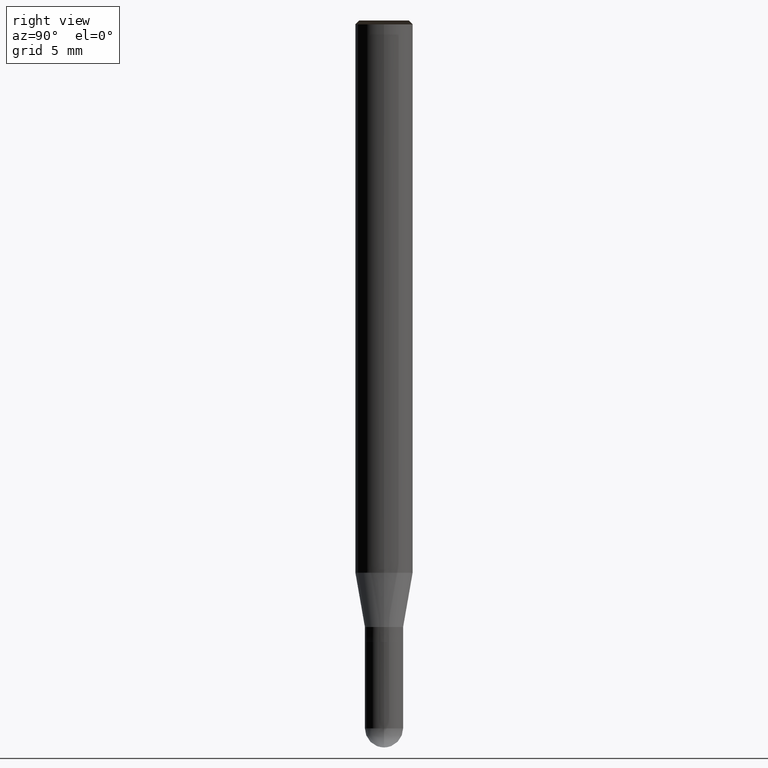
[diagram: clean part render]
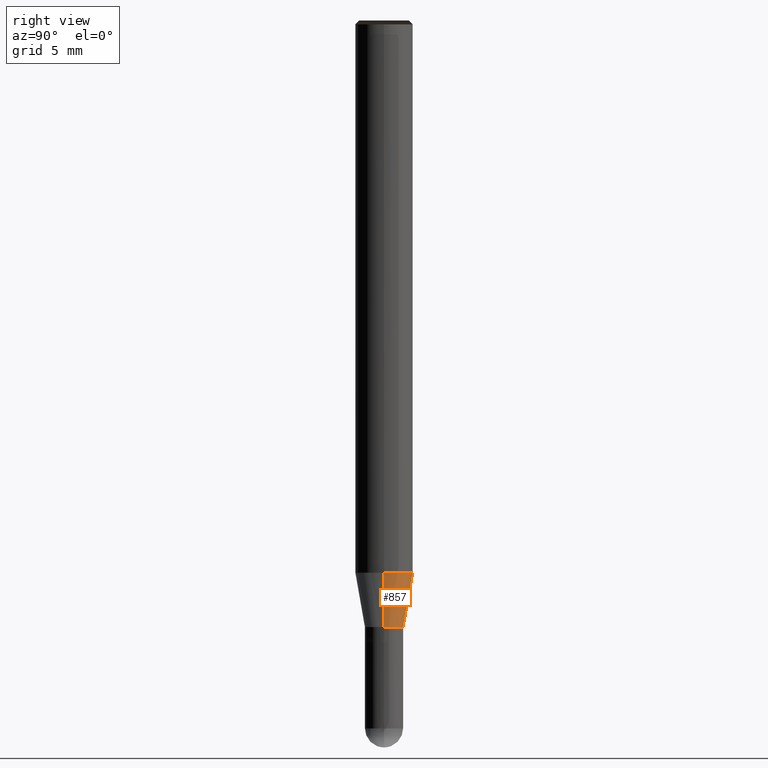
[diagram: same view with one face highlighted and labeled with its STEP entity id]
A machine part, right view. The second image highlights one B-rep face of the part: STEP entity #857.
In plain terms, the highlighted face is a freeform B-spline surface patch.
Its self-contained STEP definition (entity closure, byte-faithful):
#646=CARTESIAN_POINT('',(1.0,0.0,-3.0));
#647=CARTESIAN_POINT('',(1.0,1.0,-3.0));
#648=CARTESIAN_POINT('',(0.0,1.0,-3.0));
#649=CARTESIAN_POINT('',(-1.0,1.0,-3.0));
#650=CARTESIAN_POINT('',(-1.0,0.0,-3.0));
#651=CARTESIAN_POINT('',(1.5,0.0,-0.164359090191));
#652=CARTESIAN_POINT('',(1.5,1.5,-0.164359090191));
#653=CARTESIAN_POINT('',(0.0,1.5,-0.164359090191));
#654=CARTESIAN_POINT('',(-1.5,1.5,-0.164359090191));
#655=CARTESIAN_POINT('',(-1.5,0.0,-0.164359090191));
#838=(
BOUNDED_SURFACE()
B_SPLINE_SURFACE(1,2,(
(#646,#647,#648,#649,#650),
(#651,#652,#653,#654,#655)
), .UNSPECIFIED.,.F.,.F.,.F.)
B_SPLINE_SURFACE_WITH_KNOTS((2,2),(3,2,3),(
0.0,1.0),(
0.0,0.5,1.0), .UNSPECIFIED.)
GEOMETRIC_REPRESENTATION_ITEM()
RATIONAL_B_SPLINE_SURFACE(((1.0,0.707106781187,1.0,0.707106781187,1.0),
(1.0,0.707106781187,1.0,0.707106781187,1.0)
))
REPRESENTATION_ITEM('')
SURFACE()
);
#839=(
BOUNDED_CURVE()
B_SPLINE_CURVE(2,(#650,#649,#648,#647,#646),.UNSPECIFIED.,.F.,.F.)
B_SPLINE_CURVE_WITH_KNOTS((3,2,3),
(0.0,0.5,1.0),.UNSPECIFIED.)
CURVE()
GEOMETRIC_REPRESENTATION_ITEM()
RATIONAL_B_SPLINE_CURVE((1.0,0.707106781187,1.0,0.707106781187,1.0))
REPRESENTATION_ITEM('')
);
#840=(
BOUNDED_CURVE()
B_SPLINE_CURVE(1,(#646,#651),.UNSPECIFIED.,.F.,.F.)
B_SPLINE_CURVE_WITH_KNOTS((2,2),
(0.0,1.0),.UNSPECIFIED.)
CURVE()
GEOMETRIC_REPRESENTATION_ITEM()
RATIONAL_B_SPLINE_CURVE((1.0,1.0))
REPRESENTATION_ITEM('')
);
#841=(
BOUNDED_CURVE()
B_SPLINE_CURVE(2,(#651,#652,#653,#654,#655),.UNSPECIFIED.,.F.,.F.)
B_SPLINE_CURVE_WITH_KNOTS((3,2,3),
(0.0,0.5,1.0),.UNSPECIFIED.)
CURVE()
GEOMETRIC_REPRESENTATION_ITEM()
RATIONAL_B_SPLINE_CURVE((1.0,0.707106781187,1.0,0.707106781187,1.0))
REPRESENTATION_ITEM('')
);
#842=(
BOUNDED_CURVE()
B_SPLINE_CURVE(1,(#655,#650),.UNSPECIFIED.,.F.,.F.)
B_SPLINE_CURVE_WITH_KNOTS((2,2),
(0.0,1.0),.UNSPECIFIED.)
CURVE()
GEOMETRIC_REPRESENTATION_ITEM()
RATIONAL_B_SPLINE_CURVE((1.0,1.0))
REPRESENTATION_ITEM('')
);
#843=VERTEX_POINT('',#646);
#844=VERTEX_POINT('',#650);
#845=VERTEX_POINT('',#651);
#846=VERTEX_POINT('',#655);
#847=EDGE_CURVE('',#844,#843,#839,.T.);
#848=EDGE_CURVE('',#843,#845,#840,.T.);
#849=EDGE_CURVE('',#845,#846,#841,.T.);
#850=EDGE_CURVE('',#846,#844,#842,.T.);
#851=ORIENTED_EDGE('',*,*,#847,.T.);
#852=ORIENTED_EDGE('',*,*,#848,.T.);
#853=ORIENTED_EDGE('',*,*,#849,.T.);
#854=ORIENTED_EDGE('',*,*,#850,.T.);
#855=EDGE_LOOP('',(#851,#852,#853,#854));
#856=FACE_OUTER_BOUND('',#855,.T.);
#857=ADVANCED_FACE('',(#856),#838,.T.);